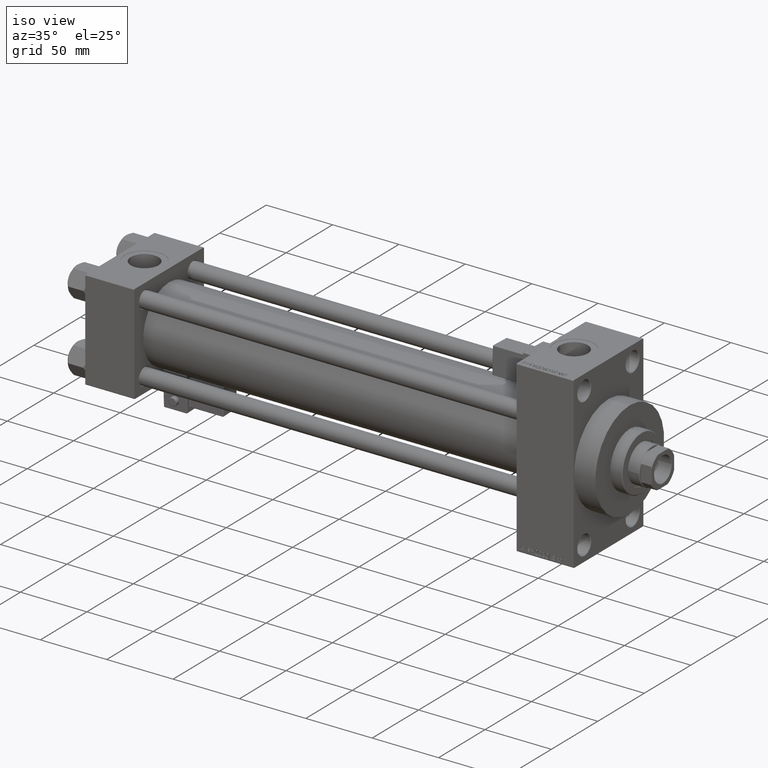
[diagram: clean part render]
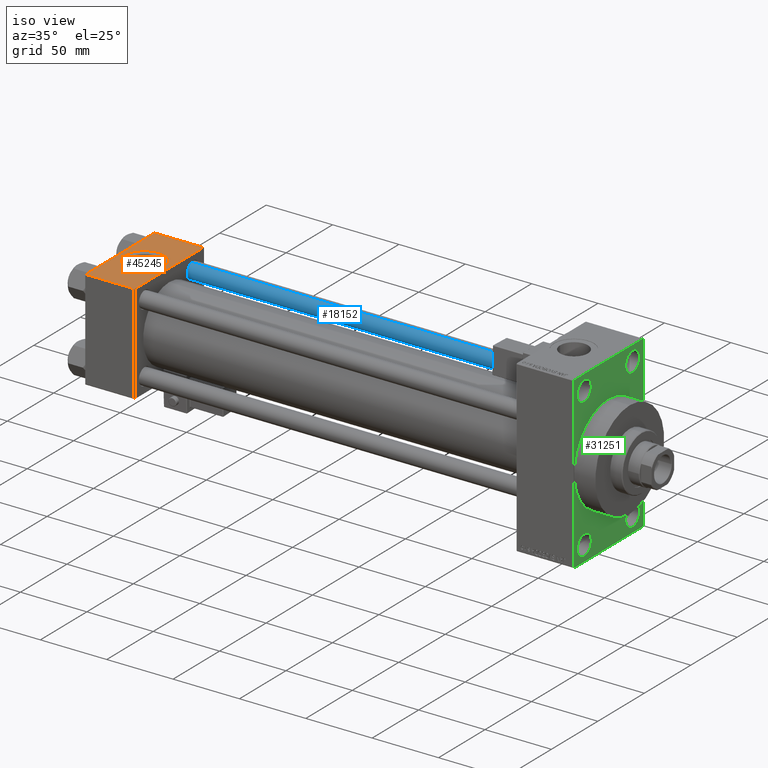
[diagram: same view with three faces highlighted in distinct colors, each labeled with its STEP entity id]
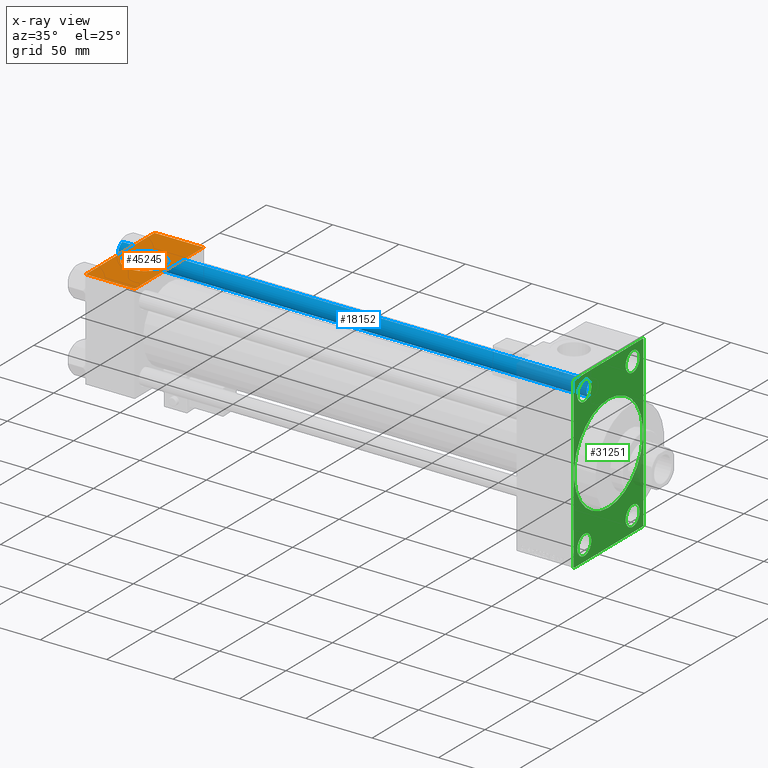
[diagram: x-ray of the same camera — body ghosted, the three highlighted faces saturated]
A machine part, iso view with three faces highlighted in distinct colors.
The next image is the same camera in x-ray (body ghosted, the three faces saturated) — at least one of them is partly hidden behind the body in this view.
Their STEP definitions:

[orange] entity #45245 — the highlighted planar face has unit normal (0, 0, -1).
#521 = DIRECTION ( 'NONE',  ( 1.000000000000000000, 0.000000000000000000, 0.000000000000000000 ) ) ;
#1222 = CARTESIAN_POINT ( 'NONE',  ( 0.000000000000000000, -37.00000000000000711, 37.49999999999999289 ) ) ;
#1516 = VECTOR ( 'NONE', #19078, 1000.000000000000000 ) ;
#2127 = AXIS2_PLACEMENT_3D ( 'NONE', #32050, #8616, #521 ) ;
#4400 = EDGE_CURVE ( 'NONE', #51212, #41980, #33075, .T. ) ;
#4965 = LINE ( 'NONE', #9136, #23190 ) ;
#6683 = EDGE_LOOP ( 'NONE', ( #17500, #11577, #46021, #12427 ) ) ;
#7162 = VECTOR ( 'NONE', #17749, 1000.000000000000000 ) ;
#7289 = VERTEX_POINT ( 'NONE', #13937 ) ;
#7930 = ORIENTED_EDGE ( 'NONE', *, *, #47863, .F. ) ;
#8616 = DIRECTION ( 'NONE',  ( 0.000000000000000000, 0.000000000000000000, 1.000000000000000000 ) ) ;
#9136 = CARTESIAN_POINT ( 'NONE',  ( 37.00000000000000000, 37.49999999999999289, 37.50000000000000000 ) ) ;
#10642 = AXIS2_PLACEMENT_3D ( 'NONE', #12497, #24203, #16132 ) ;
#11314 = ORIENTED_EDGE ( 'NONE', *, *, #4400, .F. ) ;
#11577 = ORIENTED_EDGE ( 'NONE', *, *, #19522, .T. ) ;
#11788 = CARTESIAN_POINT ( 'NONE',  ( 37.00000000000000000, -37.00000000000000711, 37.49999999999999289 ) ) ;
#12427 = ORIENTED_EDGE ( 'NONE', *, *, #21443, .T. ) ;
#12497 = CARTESIAN_POINT ( 'NONE',  ( 18.50000000000000000, -5.204170427930421283E-15, 37.50000000000000000 ) ) ;
#12853 = DIRECTION ( 'NONE',  ( 0.000000000000000000, 1.000000000000000000, 9.251858538542971581E-17 ) ) ;
#13937 = CARTESIAN_POINT ( 'NONE',  ( 37.00000000000000000, 36.99999999999999289, 37.50000000000000000 ) ) ;
#14360 = CARTESIAN_POINT ( 'NONE',  ( 0.000000000000000000, 37.49999999999999289, 37.50000000000000000 ) ) ;
#16132 = DIRECTION ( 'NONE',  ( 1.000000000000000000, 0.000000000000000000, 0.000000000000000000 ) ) ;
#16240 = PLANE ( 'NONE',  #46084 ) ;
#17500 = ORIENTED_EDGE ( 'NONE', *, *, #39316, .T. ) ;
#17749 = DIRECTION ( 'NONE',  ( 0.000000000000000000, -1.000000000000000000, -9.251858538542971581E-17 ) ) ;
#19078 = DIRECTION ( 'NONE',  ( 1.000000000000000000, 0.000000000000000000, 0.000000000000000000 ) ) ;
#19522 = EDGE_CURVE ( 'NONE', #23923, #48607, #31570, .T. ) ;
#20324 = EDGE_CURVE ( 'NONE', #7289, #48607, #4965, .T. ) ;
#21443 = EDGE_CURVE ( 'NONE', #7289, #22663, #28603, .T. ) ;
#21656 = LINE ( 'NONE', #14360, #7162 ) ;
#22092 = CIRCLE ( 'NONE', #2127, 15.00000000000000355 ) ;
#22663 = VERTEX_POINT ( 'NONE', #39219 ) ;
#23190 = VECTOR ( 'NONE', #41377, 1000.000000000000000 ) ;
#23512 = CARTESIAN_POINT ( 'NONE',  ( 3.499999999999997780, -3.367200229209391300E-15, 37.50000000000000000 ) ) ;
#23923 = VERTEX_POINT ( 'NONE', #1222 ) ;
#24203 = DIRECTION ( 'NONE',  ( 0.000000000000000000, 0.000000000000000000, 1.000000000000000000 ) ) ;
#24569 = FACE_BOUND ( 'NONE', #28542, .T. ) ;
#24954 = DIRECTION ( 'NONE',  ( -1.000000000000000000, 0.000000000000000000, 0.000000000000000000 ) ) ;
#28542 = EDGE_LOOP ( 'NONE', ( #11314, #7930 ) ) ;
#28603 = LINE ( 'NONE', #36661, #47312 ) ;
#31570 = LINE ( 'NONE', #11788, #1516 ) ;
#32050 = CARTESIAN_POINT ( 'NONE',  ( 18.50000000000000000, -5.204170427930421283E-15, 37.50000000000000000 ) ) ;
#32131 = CARTESIAN_POINT ( 'NONE',  ( 37.00000000000000000, 37.49999999999999289, 37.50000000000000000 ) ) ;
#33075 = CIRCLE ( 'NONE', #10642, 15.00000000000000355 ) ;
#36016 = FACE_OUTER_BOUND ( 'NONE', #6683, .T. ) ;
#36475 = CARTESIAN_POINT ( 'NONE',  ( 33.50000000000000000, -5.204170427930421283E-15, 37.50000000000000000 ) ) ;
#36661 = CARTESIAN_POINT ( 'NONE',  ( 0.000000000000000000, 36.99999999999999289, 37.50000000000000000 ) ) ;
#39219 = CARTESIAN_POINT ( 'NONE',  ( 0.000000000000000000, 36.99999999999999289, 37.50000000000000000 ) ) ;
#39316 = EDGE_CURVE ( 'NONE', #22663, #23923, #21656, .T. ) ;
#41377 = DIRECTION ( 'NONE',  ( 0.000000000000000000, -1.000000000000000000, -9.251858538542971581E-17 ) ) ;
#41980 = VERTEX_POINT ( 'NONE', #23512 ) ;
#45245 = ADVANCED_FACE ( 'NONE', ( #24569, #36016 ), #16240, .F. ) ;
#46021 = ORIENTED_EDGE ( 'NONE', *, *, #20324, .F. ) ;
#46084 = AXIS2_PLACEMENT_3D ( 'NONE', #32131, #47975, #12853 ) ;
#47312 = VECTOR ( 'NONE', #24954, 1000.000000000000000 ) ;
#47863 = EDGE_CURVE ( 'NONE', #41980, #51212, #22092, .T. ) ;
#47975 = DIRECTION ( 'NONE',  ( 0.000000000000000000, 9.251858538542971581E-17, -1.000000000000000000 ) ) ;
#48607 = VERTEX_POINT ( 'NONE', #50525 ) ;
#50525 = CARTESIAN_POINT ( 'NONE',  ( 37.00000000000000000, -37.00000000000000711, 37.49999999999999289 ) ) ;
#51212 = VERTEX_POINT ( 'NONE', #36475 ) ;

[blue] entity #18152 — the highlighted cylindrical surface (edge-blend (fillet) strip) has radius 6 mm, axis along (-1, -0, 0).
#384 = VECTOR ( 'NONE', #42844, 1000.000000000000000 ) ;
#1455 = DIRECTION ( 'NONE',  ( -0.000000000000000000, -0.000000000000000000, -1.000000000000000000 ) ) ;
#3144 = CARTESIAN_POINT ( 'NONE',  ( 6.000000000000000888, 7.347880794884120722E-16, 0.5000000000000559552 ) ) ;
#3769 = DIRECTION ( 'NONE',  ( 1.000000000000000000, 0.000000000000000000, 0.000000000000000000 ) ) ;
#6561 = VERTEX_POINT ( 'NONE', #3144 ) ;
#13573 = CARTESIAN_POINT ( 'NONE',  ( -6.000000000000000888, 0.000000000000000000, 0.5000000000000559552 ) ) ;
#13671 = DIRECTION ( 'NONE',  ( 1.000000000000000000, 0.000000000000000000, 0.000000000000000000 ) ) ;
#14483 = EDGE_CURVE ( 'NONE', #40391, #33342, #15298, .T. ) ;
#14810 = EDGE_CURVE ( 'NONE', #40781, #40391, #26729, .T. ) ;
#15298 = LINE ( 'NONE', #27523, #48329 ) ;
#16828 = CARTESIAN_POINT ( 'NONE',  ( 0.000000000000000000, 0.000000000000000000, 354.0000000000000000 ) ) ;
#17582 = AXIS2_PLACEMENT_3D ( 'NONE', #19398, #27723, #3769 ) ;
#18152 = ADVANCED_FACE ( 'NONE', ( #45180 ), #25420, .T. ) ;
#18201 = AXIS2_PLACEMENT_3D ( 'NONE', #16828, #1455, #36872 ) ;
#19398 = CARTESIAN_POINT ( 'NONE',  ( 0.000000000000000000, 0.000000000000000000, 353.5000000000000000 ) ) ;
#20314 = AXIS2_PLACEMENT_3D ( 'NONE', #33948, #30061, #13671 ) ;
#21831 = CARTESIAN_POINT ( 'NONE',  ( -6.000000000000000888, 0.000000000000000000, 353.5000000000000000 ) ) ;
#22224 = ORIENTED_EDGE ( 'NONE', *, *, #14810, .T. ) ;
#23111 = DIRECTION ( 'NONE',  ( -0.000000000000000000, -0.000000000000000000, -1.000000000000000000 ) ) ;
#24814 = ORIENTED_EDGE ( 'NONE', *, *, #35711, .T. ) ;
#25420 = CYLINDRICAL_SURFACE ( 'NONE', #18201, 6.000000000000000888 ) ;
#26120 = CIRCLE ( 'NONE', #20314, 6.000000000000000888 ) ;
#26729 = CIRCLE ( 'NONE', #17582, 6.000000000000000888 ) ;
#27523 = CARTESIAN_POINT ( 'NONE',  ( -6.000000000000000888, 0.000000000000000000, 354.0000000000000000 ) ) ;
#27723 = DIRECTION ( 'NONE',  ( 0.000000000000000000, 0.000000000000000000, -1.000000000000000000 ) ) ;
#27750 = CARTESIAN_POINT ( 'NONE',  ( 6.000000000000000888, 7.347880794884120722E-16, 354.0000000000000000 ) ) ;
#30061 = DIRECTION ( 'NONE',  ( -0.000000000000000000, -0.000000000000000000, 1.000000000000000000 ) ) ;
#30388 = ORIENTED_EDGE ( 'NONE', *, *, #36610, .F. ) ;
#31661 = LINE ( 'NONE', #27750, #384 ) ;
#33342 = VERTEX_POINT ( 'NONE', #13573 ) ;
#33948 = CARTESIAN_POINT ( 'NONE',  ( 0.000000000000000000, 0.000000000000000000, 0.5000000000000559552 ) ) ;
#35711 = EDGE_CURVE ( 'NONE', #33342, #6561, #26120, .T. ) ;
#36610 = EDGE_CURVE ( 'NONE', #40781, #6561, #31661, .T. ) ;
#36872 = DIRECTION ( 'NONE',  ( -1.000000000000000000, 0.000000000000000000, 0.000000000000000000 ) ) ;
#40205 = EDGE_LOOP ( 'NONE', ( #30388, #22224, #43105, #24814 ) ) ;
#40391 = VERTEX_POINT ( 'NONE', #21831 ) ;
#40781 = VERTEX_POINT ( 'NONE', #42568 ) ;
#42568 = CARTESIAN_POINT ( 'NONE',  ( 6.000000000000000888, 7.347880794884120722E-16, 353.5000000000000000 ) ) ;
#42844 = DIRECTION ( 'NONE',  ( -0.000000000000000000, -0.000000000000000000, -1.000000000000000000 ) ) ;
#43105 = ORIENTED_EDGE ( 'NONE', *, *, #14483, .T. ) ;
#45180 = FACE_OUTER_BOUND ( 'NONE', #40205, .T. ) ;
#48329 = VECTOR ( 'NONE', #23111, 1000.000000000000000 ) ;

[green] entity #31251 — the highlighted planar face has unit normal (-1, 0, 0).
#115 = VERTEX_POINT ( 'NONE', #17887 ) ;
#152 = ORIENTED_EDGE ( 'NONE', *, *, #2065, .T. ) ;
#1171 = AXIS2_PLACEMENT_3D ( 'NONE', #2404, #9979, #49521 ) ;
#1188 = DIRECTION ( 'NONE',  ( 0.000000000000000000, 0.000000000000000000, 1.000000000000000000 ) ) ;
#1606 = EDGE_LOOP ( 'NONE', ( #11556, #31672 ) ) ;
#1617 = EDGE_CURVE ( 'NONE', #2772, #46417, #9751, .T. ) ;
#1736 = AXIS2_PLACEMENT_3D ( 'NONE', #14201, #37613, #46685 ) ;
#1771 = CIRCLE ( 'NONE', #1736, 7.500000000000062172 ) ;
#2065 = EDGE_CURVE ( 'NONE', #37837, #39381, #4766, .T. ) ;
#2404 = CARTESIAN_POINT ( 'NONE',  ( 367.9999999999999432, 26.00000000000000000, 52.49999999999999289 ) ) ;
#2447 = ORIENTED_EDGE ( 'NONE', *, *, #45318, .T. ) ;
#2521 = CARTESIAN_POINT ( 'NONE',  ( 367.9999999999999432, 0.000000000000000000, 0.000000000000000000 ) ) ;
#2772 = VERTEX_POINT ( 'NONE', #39782 ) ;
#2899 = CARTESIAN_POINT ( 'NONE',  ( 367.9999999999999432, 0.000000000000000000, 0.000000000000000000 ) ) ;
#3218 = ORIENTED_EDGE ( 'NONE', *, *, #5058, .T. ) ;
#3451 = VECTOR ( 'NONE', #17958, 1000.000000000000114 ) ;
#3801 = CIRCLE ( 'NONE', #48671, 7.500000000000062172 ) ;
#4335 = VECTOR ( 'NONE', #41453, 1000.000000000000000 ) ;
#4766 = CIRCLE ( 'NONE', #18065, 7.500000000000062172 ) ;
#4883 = DIRECTION ( 'NONE',  ( -0.000000000000000000, -0.7071067811865524577, -0.7071067811865426878 ) ) ;
#5058 = EDGE_CURVE ( 'NONE', #49989, #17181, #39108, .T. ) ;
#5482 = CARTESIAN_POINT ( 'NONE',  ( 367.9999999999999432, 37.49999999999999289, -63.50000000000001421 ) ) ;
#5609 = EDGE_CURVE ( 'NONE', #15988, #45821, #43132, .T. ) ;
#5693 = ORIENTED_EDGE ( 'NONE', *, *, #7387, .T. ) ;
#6121 = EDGE_CURVE ( 'NONE', #19645, #36805, #30429, .T. ) ;
#6150 = CARTESIAN_POINT ( 'NONE',  ( 367.9999999999999432, -25.99999999999999645, 60.00000000000005684 ) ) ;
#6563 = FACE_BOUND ( 'NONE', #8520, .T. ) ;
#6565 = CARTESIAN_POINT ( 'NONE',  ( 367.9999999999999432, 26.00000000000000000, -44.99999999999992895 ) ) ;
#6962 = VERTEX_POINT ( 'NONE', #24667 ) ;
#6971 = EDGE_CURVE ( 'NONE', #6962, #37306, #12701, .T. ) ;
#7387 = EDGE_CURVE ( 'NONE', #35995, #13051, #26543, .T. ) ;
#7486 = LINE ( 'NONE', #32407, #12425 ) ;
#8482 = ORIENTED_EDGE ( 'NONE', *, *, #5609, .T. ) ;
#8520 = EDGE_LOOP ( 'NONE', ( #35913, #152 ) ) ;
#8662 = EDGE_CURVE ( 'NONE', #42333, #13599, #27467, .T. ) ;
#8762 = ORIENTED_EDGE ( 'NONE', *, *, #33314, .T. ) ;
#9225 = DIRECTION ( 'NONE',  ( 0.000000000000000000, -5.421010862427522170E-17, -1.000000000000000000 ) ) ;
#9255 = DIRECTION ( 'NONE',  ( 0.000000000000000000, 0.000000000000000000, 1.000000000000000000 ) ) ;
#9515 = CARTESIAN_POINT ( 'NONE',  ( 367.9999999999999432, -25.99999999999999645, -52.49999999999999289 ) ) ;
#9751 = CIRCLE ( 'NONE', #28030, 37.00000000000000000 ) ;
#9848 = CARTESIAN_POINT ( 'NONE',  ( 367.9999999999999432, -37.49999999999999289, -63.50000000000002842 ) ) ;
#9979 = DIRECTION ( 'NONE',  ( -1.000000000000000000, 0.000000000000000000, -0.000000000000000000 ) ) ;
#10026 = EDGE_CURVE ( 'NONE', #19645, #115, #7486, .T. ) ;
#10509 = CARTESIAN_POINT ( 'NONE',  ( 367.9999999999999432, -36.99999999999993605, -64.00000000000001421 ) ) ;
#10675 = VECTOR ( 'NONE', #46914, 1000.000000000000114 ) ;
#11063 = EDGE_LOOP ( 'NONE', ( #14233, #5693 ) ) ;
#11556 = ORIENTED_EDGE ( 'NONE', *, *, #8662, .T. ) ;
#11708 = CARTESIAN_POINT ( 'NONE',  ( 367.9999999999999432, 26.00000000000000000, 44.99999999999992895 ) ) ;
#12390 = CIRCLE ( 'NONE', #43125, 37.00000000000000000 ) ;
#12425 = VECTOR ( 'NONE', #9225, 1000.000000000000000 ) ;
#12666 = CARTESIAN_POINT ( 'NONE',  ( 367.9999999999999432, -36.99999999999993605, -64.00000000000001421 ) ) ;
#12701 = LINE ( 'NONE', #20249, #51502 ) ;
#12814 = CARTESIAN_POINT ( 'NONE',  ( 367.9999999999999432, 26.00000000000000000, 52.49999999999999289 ) ) ;
#12914 = CARTESIAN_POINT ( 'NONE',  ( 367.9999999999999432, 26.00000000000000000, -52.49999999999999289 ) ) ;
#13051 = VERTEX_POINT ( 'NONE', #42145 ) ;
#13233 = DIRECTION ( 'NONE',  ( -1.000000000000000000, 0.000000000000000000, -0.000000000000000000 ) ) ;
#13599 = VERTEX_POINT ( 'NONE', #6565 ) ;
#13914 = EDGE_CURVE ( 'NONE', #42087, #115, #29949, .T. ) ;
#14201 = CARTESIAN_POINT ( 'NONE',  ( 367.9999999999999432, 26.00000000000000000, -52.49999999999999289 ) ) ;
#14233 = ORIENTED_EDGE ( 'NONE', *, *, #48184, .T. ) ;
#15722 = VECTOR ( 'NONE', #26526, 1000.000000000000000 ) ;
#15988 = VERTEX_POINT ( 'NONE', #44293 ) ;
#16489 = DIRECTION ( 'NONE',  ( 0.000000000000000000, 0.000000000000000000, -1.000000000000000000 ) ) ;
#16794 = ORIENTED_EDGE ( 'NONE', *, *, #20658, .F. ) ;
#17181 = VERTEX_POINT ( 'NONE', #12666 ) ;
#17470 = AXIS2_PLACEMENT_3D ( 'NONE', #12914, #35832, #1188 ) ;
#17571 = DIRECTION ( 'NONE',  ( -1.000000000000000000, 0.000000000000000000, -0.000000000000000000 ) ) ;
#17649 = ORIENTED_EDGE ( 'NONE', *, *, #10026, .F. ) ;
#17887 = CARTESIAN_POINT ( 'NONE',  ( 367.9999999999999432, 37.49999999999999289, -63.50000000000001421 ) ) ;
#17958 = DIRECTION ( 'NONE',  ( -0.000000000000000000, 0.7071067811865965336, 0.7071067811864985009 ) ) ;
#18001 = CIRCLE ( 'NONE', #18815, 7.500000000000062172 ) ;
#18065 = AXIS2_PLACEMENT_3D ( 'NONE', #25012, #40869, #37237 ) ;
#18526 = FACE_BOUND ( 'NONE', #1606, .T. ) ;
#18585 = CARTESIAN_POINT ( 'NONE',  ( 367.9999999999999432, 36.99999999999994316, 63.99999999999998579 ) ) ;
#18809 = CARTESIAN_POINT ( 'NONE',  ( 367.9999999999999432, -37.49999999999999289, 63.49999999999991473 ) ) ;
#18815 = AXIS2_PLACEMENT_3D ( 'NONE', #19963, #23612, #35837 ) ;
#19645 = VERTEX_POINT ( 'NONE', #44804 ) ;
#19963 = CARTESIAN_POINT ( 'NONE',  ( 367.9999999999999432, -25.99999999999999645, 52.50000000000000000 ) ) ;
#20249 = CARTESIAN_POINT ( 'NONE',  ( 367.9999999999999432, -37.49999999999999289, 63.49999999999991473 ) ) ;
#20394 = CARTESIAN_POINT ( 'NONE',  ( 367.9999999999999432, 0.000000000000000000, 0.000000000000000000 ) ) ;
#20518 = DIRECTION ( 'NONE',  ( -0.000000000000000000, 0.000000000000000000, 1.000000000000000000 ) ) ;
#20658 = EDGE_CURVE ( 'NONE', #46417, #2772, #12390, .T. ) ;
#21133 = CIRCLE ( 'NONE', #1171, 7.500000000000062172 ) ;
#21427 = LINE ( 'NONE', #45358, #4335 ) ;
#21987 = CARTESIAN_POINT ( 'NONE',  ( 367.9999999999999432, -25.99999999999999645, -52.49999999999999289 ) ) ;
#22143 = EDGE_CURVE ( 'NONE', #42087, #17181, #33409, .T. ) ;
#22699 = FACE_BOUND ( 'NONE', #11063, .T. ) ;
#23612 = DIRECTION ( 'NONE',  ( -1.000000000000000000, 0.000000000000000000, -0.000000000000000000 ) ) ;
#24667 = CARTESIAN_POINT ( 'NONE',  ( 367.9999999999999432, -36.99999999999992895, 63.99999999999997158 ) ) ;
#24901 = VECTOR ( 'NONE', #25355, 1000.000000000000000 ) ;
#25012 = CARTESIAN_POINT ( 'NONE',  ( 367.9999999999999432, -25.99999999999999645, 52.50000000000000000 ) ) ;
#25102 = CARTESIAN_POINT ( 'NONE',  ( 367.9999999999999432, 0.000000000000000000, 37.00000000000000000 ) ) ;
#25355 = DIRECTION ( 'NONE',  ( 0.000000000000000000, -1.000000000000000000, -1.850371707708594563E-16 ) ) ;
#25395 = DIRECTION ( 'NONE',  ( -1.000000000000000000, 0.000000000000000000, -0.000000000000000000 ) ) ;
#25446 = ORIENTED_EDGE ( 'NONE', *, *, #6121, .T. ) ;
#25629 = EDGE_LOOP ( 'NONE', ( #40530, #3218, #28441, #47788, #17649, #25446, #8762, #37157 ) ) ;
#26099 = EDGE_CURVE ( 'NONE', #13599, #42333, #1771, .T. ) ;
#26526 = DIRECTION ( 'NONE',  ( 0.000000000000000000, -0.7071067811865867636, 0.7071067811865081598 ) ) ;
#26543 = CIRCLE ( 'NONE', #32428, 7.500000000000062172 ) ;
#27467 = CIRCLE ( 'NONE', #17470, 7.500000000000062172 ) ;
#28030 = AXIS2_PLACEMENT_3D ( 'NONE', #20394, #36269, #16489 ) ;
#28441 = ORIENTED_EDGE ( 'NONE', *, *, #22143, .F. ) ;
#29949 = LINE ( 'NONE', #5482, #3451 ) ;
#30264 = FACE_BOUND ( 'NONE', #50254, .T. ) ;
#30429 = LINE ( 'NONE', #46280, #15722 ) ;
#30649 = ORIENTED_EDGE ( 'NONE', *, *, #1617, .F. ) ;
#31251 = ADVANCED_FACE ( 'NONE', ( #6563, #22699, #18526, #46111, #30264, #42215 ), #34398, .F. ) ;
#31672 = ORIENTED_EDGE ( 'NONE', *, *, #26099, .T. ) ;
#31992 = EDGE_CURVE ( 'NONE', #37306, #49989, #21427, .T. ) ;
#32403 = CARTESIAN_POINT ( 'NONE',  ( 367.9999999999999432, 37.49999999999999289, -64.00000000000000000 ) ) ;
#32407 = CARTESIAN_POINT ( 'NONE',  ( 367.9999999999999432, 37.50000000000000000, 63.99999999999998579 ) ) ;
#32428 = AXIS2_PLACEMENT_3D ( 'NONE', #21987, #17571, #9255 ) ;
#33314 = EDGE_CURVE ( 'NONE', #36805, #6962, #45812, .T. ) ;
#33409 = LINE ( 'NONE', #32403, #24901 ) ;
#33710 = DIRECTION ( 'NONE',  ( 0.000000000000000000, 0.000000000000000000, 1.000000000000000000 ) ) ;
#34378 = CARTESIAN_POINT ( 'NONE',  ( 367.9999999999999432, 36.99999999999993605, -64.00000000000000000 ) ) ;
#34398 = PLANE ( 'NONE',  #44185 ) ;
#35832 = DIRECTION ( 'NONE',  ( -1.000000000000000000, 0.000000000000000000, -0.000000000000000000 ) ) ;
#35837 = DIRECTION ( 'NONE',  ( 0.000000000000000000, 0.000000000000000000, 1.000000000000000000 ) ) ;
#35913 = ORIENTED_EDGE ( 'NONE', *, *, #50168, .T. ) ;
#35995 = VERTEX_POINT ( 'NONE', #37219 ) ;
#36269 = DIRECTION ( 'NONE',  ( 1.000000000000000000, 0.000000000000000000, 0.000000000000000000 ) ) ;
#36495 = AXIS2_PLACEMENT_3D ( 'NONE', #12814, #40904, #44808 ) ;
#36805 = VERTEX_POINT ( 'NONE', #18585 ) ;
#37157 = ORIENTED_EDGE ( 'NONE', *, *, #6971, .T. ) ;
#37219 = CARTESIAN_POINT ( 'NONE',  ( 367.9999999999999432, -25.99999999999999645, -44.99999999999992895 ) ) ;
#37237 = DIRECTION ( 'NONE',  ( 0.000000000000000000, 0.000000000000000000, 1.000000000000000000 ) ) ;
#37277 = CARTESIAN_POINT ( 'NONE',  ( 367.9999999999999432, -25.99999999999999645, 44.99999999999993605 ) ) ;
#37306 = VERTEX_POINT ( 'NONE', #18809 ) ;
#37509 = DIRECTION ( 'NONE',  ( 0.000000000000000000, -1.000000000000000000, -1.850371707708594563E-16 ) ) ;
#37613 = DIRECTION ( 'NONE',  ( -1.000000000000000000, 0.000000000000000000, -0.000000000000000000 ) ) ;
#37837 = VERTEX_POINT ( 'NONE', #6150 ) ;
#37920 = DIRECTION ( 'NONE',  ( 0.000000000000000000, 0.000000000000000000, -1.000000000000000000 ) ) ;
#38003 = CARTESIAN_POINT ( 'NONE',  ( 367.9999999999999432, 37.50000000000000000, 63.99999999999998579 ) ) ;
#38070 = EDGE_LOOP ( 'NONE', ( #2447, #8482 ) ) ;
#39108 = LINE ( 'NONE', #10509, #10675 ) ;
#39381 = VERTEX_POINT ( 'NONE', #37277 ) ;
#39782 = CARTESIAN_POINT ( 'NONE',  ( 367.9999999999999432, 4.531193156845206793E-15, -37.00000000000000000 ) ) ;
#40530 = ORIENTED_EDGE ( 'NONE', *, *, #31992, .T. ) ;
#40869 = DIRECTION ( 'NONE',  ( -1.000000000000000000, 0.000000000000000000, -0.000000000000000000 ) ) ;
#40904 = DIRECTION ( 'NONE',  ( -1.000000000000000000, 0.000000000000000000, -0.000000000000000000 ) ) ;
#41453 = DIRECTION ( 'NONE',  ( 0.000000000000000000, 0.000000000000000000, -1.000000000000000000 ) ) ;
#42087 = VERTEX_POINT ( 'NONE', #34378 ) ;
#42145 = CARTESIAN_POINT ( 'NONE',  ( 367.9999999999999432, -25.99999999999999645, -60.00000000000005684 ) ) ;
#42215 = FACE_OUTER_BOUND ( 'NONE', #25629, .T. ) ;
#42333 = VERTEX_POINT ( 'NONE', #47243 ) ;
#43125 = AXIS2_PLACEMENT_3D ( 'NONE', #2521, #49895, #37920 ) ;
#43132 = CIRCLE ( 'NONE', #36495, 7.500000000000062172 ) ;
#44185 = AXIS2_PLACEMENT_3D ( 'NONE', #2899, #13233, #20518 ) ;
#44293 = CARTESIAN_POINT ( 'NONE',  ( 367.9999999999999432, 26.00000000000000000, 60.00000000000005684 ) ) ;
#44804 = CARTESIAN_POINT ( 'NONE',  ( 367.9999999999999432, 37.50000000000000000, 63.49999999999998579 ) ) ;
#44808 = DIRECTION ( 'NONE',  ( 0.000000000000000000, 0.000000000000000000, 1.000000000000000000 ) ) ;
#45318 = EDGE_CURVE ( 'NONE', #45821, #15988, #21133, .T. ) ;
#45358 = CARTESIAN_POINT ( 'NONE',  ( 367.9999999999999432, -37.49999999999999289, 63.99999999999997158 ) ) ;
#45812 = LINE ( 'NONE', #38003, #50966 ) ;
#45821 = VERTEX_POINT ( 'NONE', #11708 ) ;
#46111 = FACE_BOUND ( 'NONE', #38070, .T. ) ;
#46280 = CARTESIAN_POINT ( 'NONE',  ( 367.9999999999999432, 36.99999999999994316, 63.99999999999998579 ) ) ;
#46417 = VERTEX_POINT ( 'NONE', #25102 ) ;
#46685 = DIRECTION ( 'NONE',  ( 0.000000000000000000, 0.000000000000000000, 1.000000000000000000 ) ) ;
#46914 = DIRECTION ( 'NONE',  ( 0.000000000000000000, 0.7071067811865965336, -0.7071067811864985009 ) ) ;
#47243 = CARTESIAN_POINT ( 'NONE',  ( 367.9999999999999432, 26.00000000000000000, -60.00000000000005684 ) ) ;
#47788 = ORIENTED_EDGE ( 'NONE', *, *, #13914, .T. ) ;
#48184 = EDGE_CURVE ( 'NONE', #13051, #35995, #3801, .T. ) ;
#48671 = AXIS2_PLACEMENT_3D ( 'NONE', #9515, #25395, #33710 ) ;
#49521 = DIRECTION ( 'NONE',  ( 0.000000000000000000, 0.000000000000000000, 1.000000000000000000 ) ) ;
#49895 = DIRECTION ( 'NONE',  ( 1.000000000000000000, 0.000000000000000000, 0.000000000000000000 ) ) ;
#49989 = VERTEX_POINT ( 'NONE', #9848 ) ;
#50168 = EDGE_CURVE ( 'NONE', #39381, #37837, #18001, .T. ) ;
#50254 = EDGE_LOOP ( 'NONE', ( #16794, #30649 ) ) ;
#50966 = VECTOR ( 'NONE', #37509, 1000.000000000000000 ) ;
#51502 = VECTOR ( 'NONE', #4883, 1000.000000000000000 ) ;